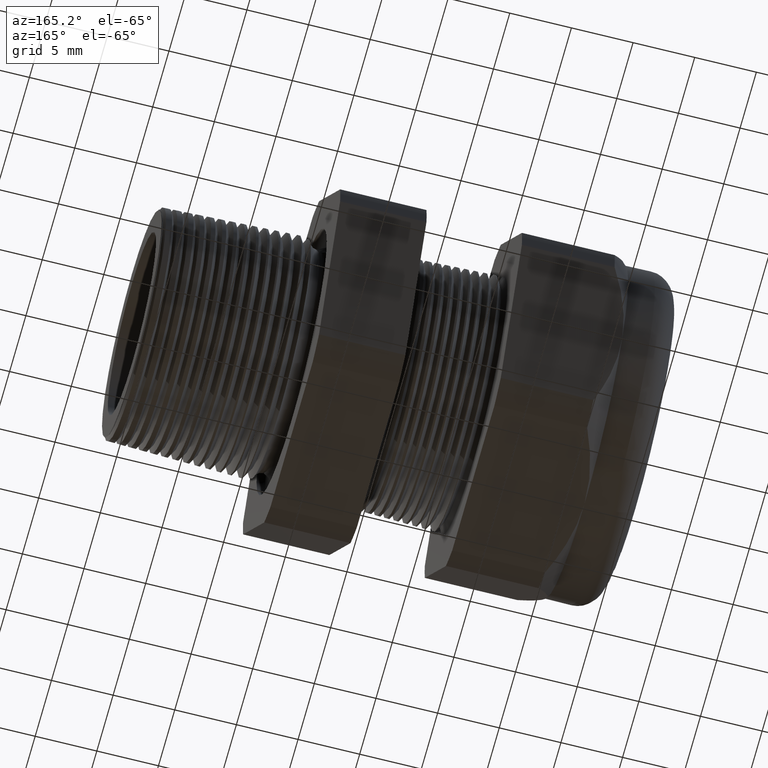
[diagram: clean part render]
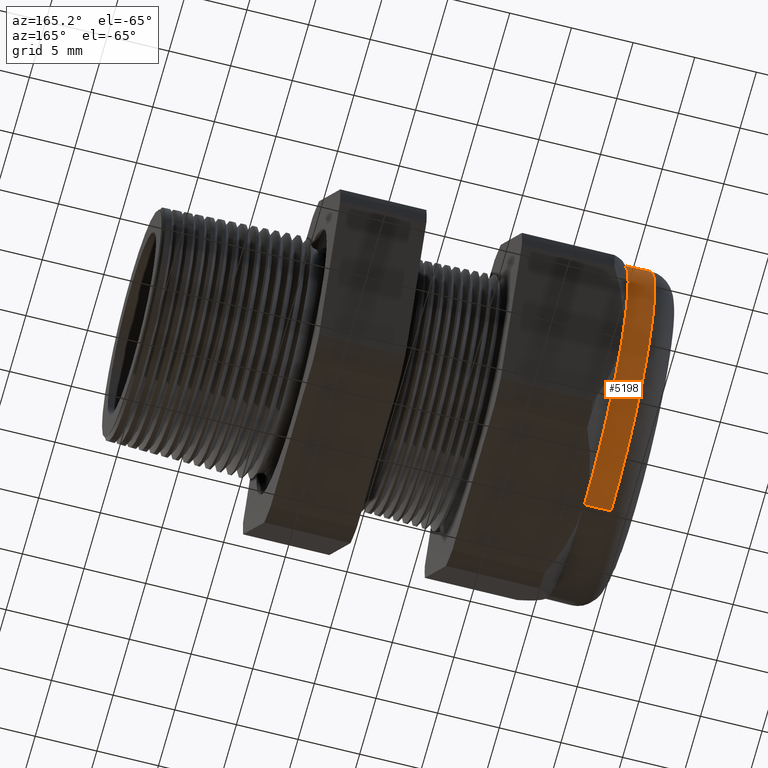
[diagram: same view with one face highlighted and labeled with its STEP entity id]
A machine part, auxiliary view. The second image highlights one B-rep face of the part: STEP entity #5198.
In plain terms, the highlighted cylindrical surface (partial cylindrical patch) has radius 13.462 mm, axis along (1, 0, 0).
Its self-contained STEP definition (entity closure, byte-faithful):
#1482 = CARTESIAN_POINT ( 'NONE',  ( -1.244645669291338600, 0.0000000000000000000, 0.0000000000000000000 ) ) ;
#1483 = AXIS2_PLACEMENT_3D ( 'NONE', #1482, #1547, #1546 ) ;
#1484 = CIRCLE ( 'NONE', #1483, 0.5300000000000001400 ) ;
#1494 = DIRECTION ( 'NONE',  ( 1.000000000000000000, 0.0000000000000000000, 0.0000000000000000000 ) ) ;
#1495 = VECTOR ( 'NONE', #1494, 39.37007874015748100 ) ;
#1496 = CARTESIAN_POINT ( 'NONE',  ( 0.0000000000000000000, 6.490628035480972400E-017, 0.5300000000000001400 ) ) ;
#1497 = LINE ( 'NONE', #1496, #1495 ) ;
#1498 = DIRECTION ( 'NONE',  ( 0.0000000000000000000, 0.0000000000000000000, -1.000000000000000000 ) ) ;
#1499 = DIRECTION ( 'NONE',  ( 1.000000000000000000, 0.0000000000000000000, 0.0000000000000000000 ) ) ;
#1500 = CARTESIAN_POINT ( 'NONE',  ( 0.0000000000000000000, 0.0000000000000000000, 0.0000000000000000000 ) ) ;
#1501 = AXIS2_PLACEMENT_3D ( 'NONE', #1500, #1499, #1498 ) ;
#1502 = CARTESIAN_POINT ( 'NONE',  ( -1.244645669291338600, 0.0000000000000000000, 0.5300000000000001400 ) ) ;
#1503 = CYLINDRICAL_SURFACE ( 'NONE', #1501, 0.5300000000000001400 ) ;
#1504 = FACE_OUTER_BOUND ( 'NONE', #2487, .T. ) ;
#1546 = DIRECTION ( 'NONE',  ( 0.0000000000000000000, 0.0000000000000000000, -1.000000000000000000 ) ) ;
#1547 = DIRECTION ( 'NONE',  ( 1.000000000000000000, 0.0000000000000000000, 0.0000000000000000000 ) ) ;
#1572 = DIRECTION ( 'NONE',  ( 1.000000000000000000, 0.0000000000000000000, 0.0000000000000000000 ) ) ;
#1573 = VECTOR ( 'NONE', #1572, 39.37007874015748100 ) ;
#1574 = CARTESIAN_POINT ( 'NONE',  ( 0.0000000000000000000, 0.0000000000000000000, -0.5300000000000001400 ) ) ;
#1575 = LINE ( 'NONE', #1574, #1573 ) ;
#2445 = EDGE_CURVE ( 'NONE', #2448, #2455, #4076, .T. ) ;
#2448 = VERTEX_POINT ( 'NONE', #4070 ) ;
#2455 = VERTEX_POINT ( 'NONE', #4059 ) ;
#2487 = EDGE_LOOP ( 'NONE', ( #5202, #5200, #5197, #2504, #2502, #5222 ) ) ;
#2499 = VERTEX_POINT ( 'NONE', #4160 ) ;
#2502 = ORIENTED_EDGE ( 'NONE', *, *, #2506, .F. ) ;
#2503 = VERTEX_POINT ( 'NONE', #4155 ) ;
#2504 = ORIENTED_EDGE ( 'NONE', *, *, #2505, .F. ) ;
#2505 = EDGE_CURVE ( 'NONE', #2503, #2507, #4153, .T. ) ;
#2506 = EDGE_CURVE ( 'NONE', #2499, #2503, #4212, .T. ) ;
#2507 = VERTEX_POINT ( 'NONE', #4208 ) ;
#4059 = CARTESIAN_POINT ( 'NONE',  ( -1.330000000000000100, 6.490628035480972400E-017, 0.5300000000000001400 ) ) ;
#4070 = CARTESIAN_POINT ( 'NONE',  ( -1.330000000000000100, 0.0000000000000000000, -0.5300000000000001400 ) ) ;
#4072 = DIRECTION ( 'NONE',  ( 0.0000000000000000000, 0.0000000000000000000, 1.000000000000000000 ) ) ;
#4073 = DIRECTION ( 'NONE',  ( 1.000000000000000000, 0.0000000000000000000, 0.0000000000000000000 ) ) ;
#4074 = CARTESIAN_POINT ( 'NONE',  ( -1.330000000000000100, 0.0000000000000000000, 0.0000000000000000000 ) ) ;
#4075 = AXIS2_PLACEMENT_3D ( 'NONE', #4074, #4073, #4072 ) ;
#4076 = CIRCLE ( 'NONE', #4075, 0.5300000000000001400 ) ;
#4149 = DIRECTION ( 'NONE',  ( 0.0000000000000000000, 0.0000000000000000000, -1.000000000000000000 ) ) ;
#4150 = DIRECTION ( 'NONE',  ( 1.000000000000000000, 0.0000000000000000000, 0.0000000000000000000 ) ) ;
#4151 = CARTESIAN_POINT ( 'NONE',  ( -1.244645669291338600, 0.0000000000000000000, 0.0000000000000000000 ) ) ;
#4152 = AXIS2_PLACEMENT_3D ( 'NONE', #4151, #4150, #4149 ) ;
#4153 = CIRCLE ( 'NONE', #4152, 0.5300000000000001400 ) ;
#4154 = CARTESIAN_POINT ( 'NONE',  ( -1.244645669291338600, 0.0000000000000000000, 0.0000000000000000000 ) ) ;
#4155 = CARTESIAN_POINT ( 'NONE',  ( -1.244645669291338600, 0.4589934640057527500, -0.2650000000000000700 ) ) ;
#4160 = CARTESIAN_POINT ( 'NONE',  ( -1.244645669291338600, 0.0000000000000000000, -0.5300000000000001400 ) ) ;
#4208 = CARTESIAN_POINT ( 'NONE',  ( -1.244645669291338600, 0.4589934640057526900, 0.2650000000000000700 ) ) ;
#4209 = DIRECTION ( 'NONE',  ( 0.0000000000000000000, 0.0000000000000000000, -1.000000000000000000 ) ) ;
#4210 = DIRECTION ( 'NONE',  ( 1.000000000000000000, 0.0000000000000000000, 0.0000000000000000000 ) ) ;
#4211 = AXIS2_PLACEMENT_3D ( 'NONE', #4154, #4210, #4209 ) ;
#4212 = CIRCLE ( 'NONE', #4211, 0.5300000000000001400 ) ;
#5197 = ORIENTED_EDGE ( 'NONE', *, *, #5206, .F. ) ;
#5198 = ADVANCED_FACE ( 'NONE', ( #1504 ), #1503, .T. ) ;
#5199 = VERTEX_POINT ( 'NONE', #1502 ) ;
#5200 = ORIENTED_EDGE ( 'NONE', *, *, #5203, .T. ) ;
#5202 = ORIENTED_EDGE ( 'NONE', *, *, #2445, .T. ) ;
#5203 = EDGE_CURVE ( 'NONE', #2455, #5199, #1497, .T. ) ;
#5206 = EDGE_CURVE ( 'NONE', #2507, #5199, #1484, .T. ) ;
#5222 = ORIENTED_EDGE ( 'NONE', *, *, #5224, .F. ) ;
#5224 = EDGE_CURVE ( 'NONE', #2448, #2499, #1575, .T. ) ;